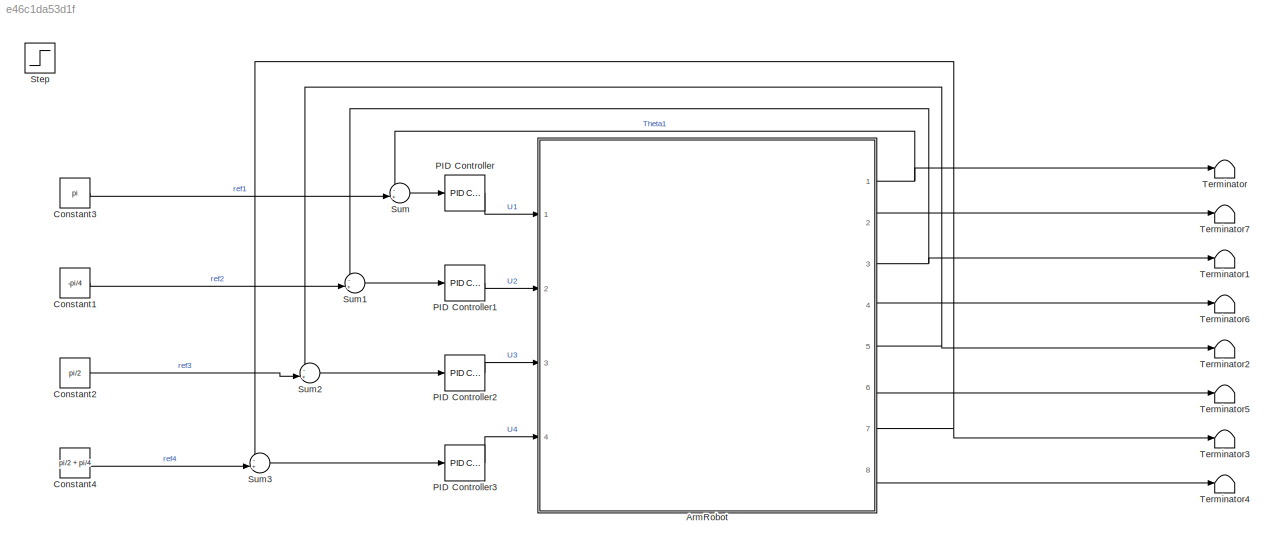
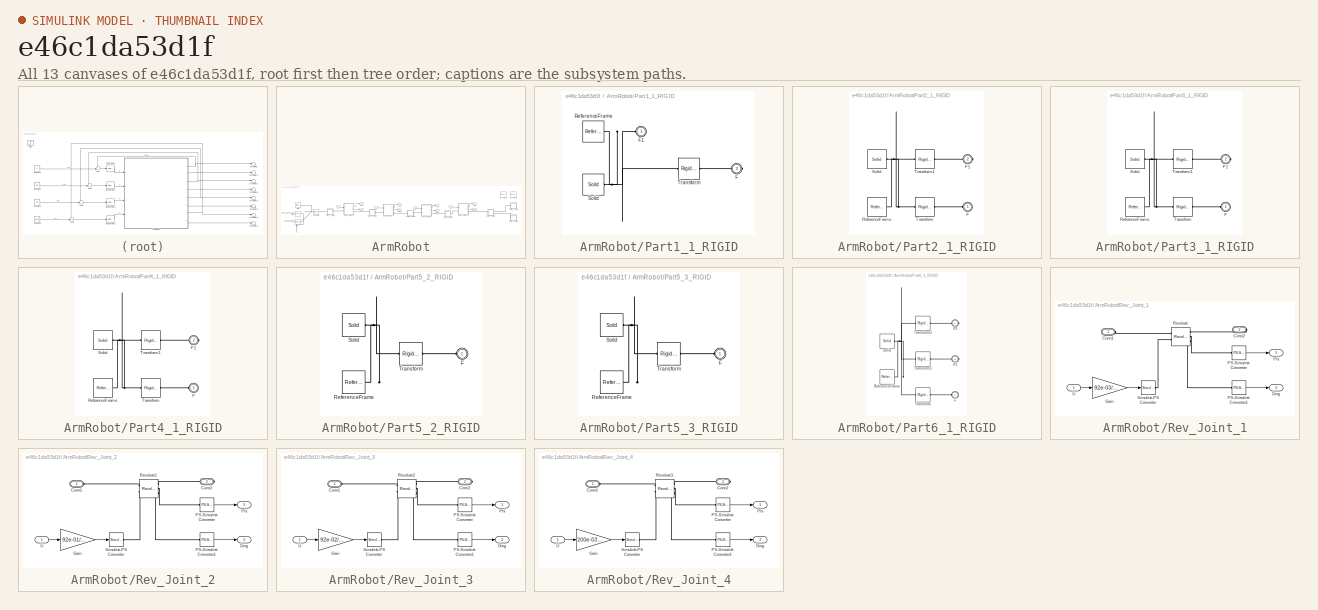
[diagram: thumbnail index - all 13 canvases of the model, root first then tree order]
MODEL slx_e46c1da53d1f
KIND model
CONFIG AbsTol = auto
CONFIG FixedStep = 0.001
CONFIG MaxStep = auto
CONFIG MinStep = auto
CONFIG RelTol = 1e-3
CONFIG SampleTimeConstraint = Unconstrained
CONFIG Solver = ode5
CONFIG SolverMode = Auto
CONFIG SolverName = ode5
CONFIG StartTime = 0.0
CONFIG StopTime = 10
WORKSPACE source: external: MATLAB File  (data not in archive)
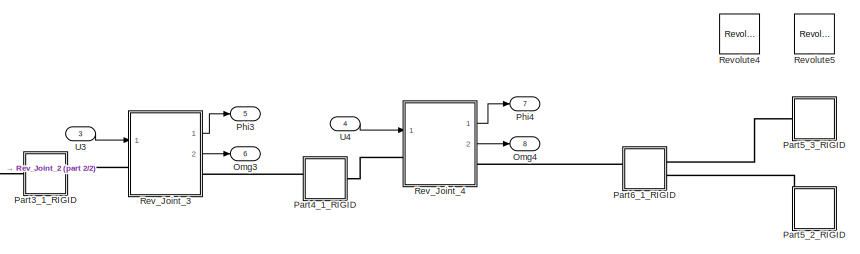
[diagram: ArmRobot - part 1/2, middle right region]
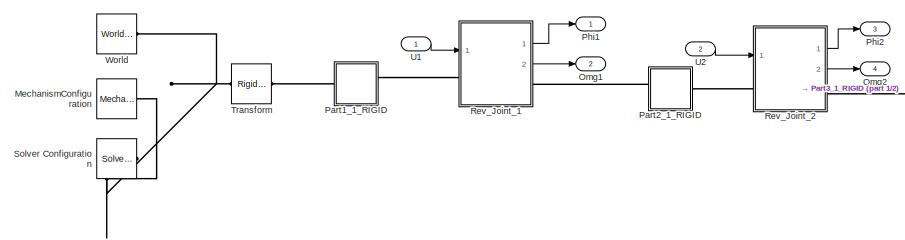
[diagram: ArmRobot - part 2/2, middle left region]
BLOCK [SubSystem] ArmRobot
  Ports = [4, 8]
  RequestExecContextInheritance = off
  Variant = off
BLOCK [Reference] ArmRobot/MechanismConfiguration  REF=sm_lib/Utilities/Mechanism
Configuration
  Ports = [0, 0, 0, 0, 0, 0, 1]
  SourceBlock = sm_lib/Utilities/Mechanism\nConfiguration
  SourceType = Mechanism\nConfiguration
BLOCK [Outport] ArmRobot/Omg1
  IconDisplay = Port number
  Port = 2
BLOCK [Outport] ArmRobot/Omg2
  IconDisplay = Port number
  Port = 4
BLOCK [Outport] ArmRobot/Omg3
  IconDisplay = Port number
  Port = 6
BLOCK [Outport] ArmRobot/Omg4
  IconDisplay = Port number
  Port = 8
BLOCK [SubSystem] ArmRobot/Part1_1_RIGID
  Ports = [0, 0, 0, 0, 0, 1, 1]
  RequestExecContextInheritance = off
  Variant = off
BLOCK [PMIOPort] ArmRobot/Part1_1_RIGID/F
  Port = 2
  Side = Right
BLOCK [PMIOPort] ArmRobot/Part1_1_RIGID/F1
  Port = 1
  Side = Left
BLOCK [Reference] ArmRobot/Part1_1_RIGID/ReferenceFrame  REF=sm_lib/Frames and
Transforms/Reference
Frame
  Ports = [0, 0, 0, 0, 0, 0, 1]
  SourceBlock = sm_lib/Frames and\nTransforms/Reference\nFrame
  SourceType = Reference\nFrame
BLOCK [Reference] ArmRobot/Part1_1_RIGID/Solid  REF=sm_lib/Body Elements/Solid
  Ports = [0, 0, 0, 0, 0, 0, 1]
  SourceBlock = sm_lib/Body Elements/Solid
  SourceType = Solid
BLOCK [Reference] ArmRobot/Part1_1_RIGID/Transform  REF=sm_lib/Frames and
Transforms/Rigid
Transform
  Ports = [0, 0, 0, 0, 0, 1, 1]
  SourceBlock = sm_lib/Frames and\nTransforms/Rigid\nTransform
  SourceType = Rigid\nTransform
BLOCK [SubSystem] ArmRobot/Part2_1_RIGID
  Ports = [0, 0, 0, 0, 0, 1, 1]
  RequestExecContextInheritance = off
  Variant = off
BLOCK [PMIOPort] ArmRobot/Part2_1_RIGID/F
  Port = 1
  Side = Left
BLOCK [PMIOPort] ArmRobot/Part2_1_RIGID/F1
  Port = 2
  Side = Right
BLOCK [Reference] ArmRobot/Part2_1_RIGID/ReferenceFrame  REF=sm_lib/Frames and
Transforms/Reference
Frame
  Ports = [0, 0, 0, 0, 0, 0, 1]
  SourceBlock = sm_lib/Frames and\nTransforms/Reference\nFrame
  SourceType = Reference\nFrame
BLOCK [Reference] ArmRobot/Part2_1_RIGID/Solid  REF=sm_lib/Body Elements/Solid
  Ports = [0, 0, 0, 0, 0, 0, 1]
  SourceBlock = sm_lib/Body Elements/Solid
  SourceType = Solid
BLOCK [Reference] ArmRobot/Part2_1_RIGID/Transform  REF=sm_lib/Frames and
Transforms/Rigid
Transform
  Ports = [0, 0, 0, 0, 0, 1, 1]
  SourceBlock = sm_lib/Frames and\nTransforms/Rigid\nTransform
  SourceType = Rigid\nTransform
BLOCK [Reference] ArmRobot/Part2_1_RIGID/Transform1  REF=sm_lib/Frames and
Transforms/Rigid
Transform
  Ports = [0, 0, 0, 0, 0, 1, 1]
  SourceBlock = sm_lib/Frames and\nTransforms/Rigid\nTransform
  SourceType = Rigid\nTransform
BLOCK [SubSystem] ArmRobot/Part3_1_RIGID
  Ports = [0, 0, 0, 0, 0, 1, 1]
  RequestExecContextInheritance = off
  Variant = off
BLOCK [PMIOPort] ArmRobot/Part3_1_RIGID/F
  Port = 1
  Side = Left
BLOCK [PMIOPort] ArmRobot/Part3_1_RIGID/F1
  Port = 2
  Side = Right
BLOCK [Reference] ArmRobot/Part3_1_RIGID/ReferenceFrame  REF=sm_lib/Frames and
Transforms/Reference
Frame
  Ports = [0, 0, 0, 0, 0, 0, 1]
  SourceBlock = sm_lib/Frames and\nTransforms/Reference\nFrame
  SourceType = Reference\nFrame
BLOCK [Reference] ArmRobot/Part3_1_RIGID/Solid  REF=sm_lib/Body Elements/Solid
  Ports = [0, 0, 0, 0, 0, 0, 1]
  SourceBlock = sm_lib/Body Elements/Solid
  SourceType = Solid
BLOCK [Reference] ArmRobot/Part3_1_RIGID/Transform  REF=sm_lib/Frames and
Transforms/Rigid
Transform
  Ports = [0, 0, 0, 0, 0, 1, 1]
  SourceBlock = sm_lib/Frames and\nTransforms/Rigid\nTransform
  SourceType = Rigid\nTransform
BLOCK [Reference] ArmRobot/Part3_1_RIGID/Transform1  REF=sm_lib/Frames and
Transforms/Rigid
Transform
  Ports = [0, 0, 0, 0, 0, 1, 1]
  SourceBlock = sm_lib/Frames and\nTransforms/Rigid\nTransform
  SourceType = Rigid\nTransform
BLOCK [SubSystem] ArmRobot/Part4_1_RIGID
  Ports = [0, 0, 0, 0, 0, 1, 1]
  RequestExecContextInheritance = off
  Variant = off
BLOCK [PMIOPort] ArmRobot/Part4_1_RIGID/F
  Port = 1
  Side = Left
BLOCK [PMIOPort] ArmRobot/Part4_1_RIGID/F1
  Port = 2
  Side = Right
BLOCK [Reference] ArmRobot/Part4_1_RIGID/ReferenceFrame  REF=sm_lib/Frames and
Transforms/Reference
Frame
  Ports = [0, 0, 0, 0, 0, 0, 1]
  SourceBlock = sm_lib/Frames and\nTransforms/Reference\nFrame
  SourceType = Reference\nFrame
BLOCK [Reference] ArmRobot/Part4_1_RIGID/Solid  REF=sm_lib/Body Elements/Solid
  Ports = [0, 0, 0, 0, 0, 0, 1]
  SourceBlock = sm_lib/Body Elements/Solid
  SourceType = Solid
BLOCK [Reference] ArmRobot/Part4_1_RIGID/Transform  REF=sm_lib/Frames and
Transforms/Rigid
Transform
  Ports = [0, 0, 0, 0, 0, 1, 1]
  SourceBlock = sm_lib/Frames and\nTransforms/Rigid\nTransform
  SourceType = Rigid\nTransform
BLOCK [Reference] ArmRobot/Part4_1_RIGID/Transform1  REF=sm_lib/Frames and
Transforms/Rigid
Transform
  Ports = [0, 0, 0, 0, 0, 1, 1]
  SourceBlock = sm_lib/Frames and\nTransforms/Rigid\nTransform
  SourceType = Rigid\nTransform
BLOCK [SubSystem] ArmRobot/Part5_2_RIGID
  Ports = [0, 0, 0, 0, 0, 1]
  RequestExecContextInheritance = off
  Variant = off
BLOCK [PMIOPort] ArmRobot/Part5_2_RIGID/F
  Port = 1
  Side = Left
BLOCK [Reference] ArmRobot/Part5_2_RIGID/ReferenceFrame  REF=sm_lib/Frames and
Transforms/Reference
Frame
  Ports = [0, 0, 0, 0, 0, 0, 1]
  SourceBlock = sm_lib/Frames and\nTransforms/Reference\nFrame
  SourceType = Reference\nFrame
BLOCK [Reference] ArmRobot/Part5_2_RIGID/Solid  REF=sm_lib/Body Elements/Solid
  Ports = [0, 0, 0, 0, 0, 0, 1]
  SourceBlock = sm_lib/Body Elements/Solid
  SourceType = Solid
BLOCK [Reference] ArmRobot/Part5_2_RIGID/Transform  REF=sm_lib/Frames and
Transforms/Rigid
Transform
  Ports = [0, 0, 0, 0, 0, 1, 1]
  SourceBlock = sm_lib/Frames and\nTransforms/Rigid\nTransform
  SourceType = Rigid\nTransform
BLOCK [SubSystem] ArmRobot/Part5_3_RIGID
  Ports = [0, 0, 0, 0, 0, 1]
  RequestExecContextInheritance = off
  Variant = off
BLOCK [PMIOPort] ArmRobot/Part5_3_RIGID/F
  Port = 1
  Side = Left
BLOCK [Reference] ArmRobot/Part5_3_RIGID/ReferenceFrame  REF=sm_lib/Frames and
Transforms/Reference
Frame
  Ports = [0, 0, 0, 0, 0, 0, 1]
  SourceBlock = sm_lib/Frames and\nTransforms/Reference\nFrame
  SourceType = Reference\nFrame
BLOCK [Reference] ArmRobot/Part5_3_RIGID/Solid  REF=sm_lib/Body Elements/Solid
  Ports = [0, 0, 0, 0, 0, 0, 1]
  SourceBlock = sm_lib/Body Elements/Solid
  SourceType = Solid
BLOCK [Reference] ArmRobot/Part5_3_RIGID/Transform  REF=sm_lib/Frames and
Transforms/Rigid
Transform
  Ports = [0, 0, 0, 0, 0, 1, 1]
  SourceBlock = sm_lib/Frames and\nTransforms/Rigid\nTransform
  SourceType = Rigid\nTransform
BLOCK [SubSystem] ArmRobot/Part6_1_RIGID
  Ports = [0, 0, 0, 0, 0, 1, 2]
  RequestExecContextInheritance = off
  Variant = off
BLOCK [PMIOPort] ArmRobot/Part6_1_RIGID/F
  Port = 1
  Side = Left
BLOCK [PMIOPort] ArmRobot/Part6_1_RIGID/F1
  Port = 3
  Side = Right
BLOCK [PMIOPort] ArmRobot/Part6_1_RIGID/F2
  Port = 2
  Side = Right
BLOCK [Reference] ArmRobot/Part6_1_RIGID/ReferenceFrame  REF=sm_lib/Frames and
Transforms/Reference
Frame
  Ports = [0, 0, 0, 0, 0, 0, 1]
  SourceBlock = sm_lib/Frames and\nTransforms/Reference\nFrame
  SourceType = Reference\nFrame
BLOCK [Reference] ArmRobot/Part6_1_RIGID/Solid  REF=sm_lib/Body Elements/Solid
  Ports = [0, 0, 0, 0, 0, 0, 1]
  SourceBlock = sm_lib/Body Elements/Solid
  SourceType = Solid
BLOCK [Reference] ArmRobot/Part6_1_RIGID/Transform  REF=sm_lib/Frames and
Transforms/Rigid
Transform
  Ports = [0, 0, 0, 0, 0, 1, 1]
  SourceBlock = sm_lib/Frames and\nTransforms/Rigid\nTransform
  SourceType = Rigid\nTransform
BLOCK [Reference] ArmRobot/Part6_1_RIGID/Transform1  REF=sm_lib/Frames and
Transforms/Rigid
Transform
  Ports = [0, 0, 0, 0, 0, 1, 1]
  SourceBlock = sm_lib/Frames and\nTransforms/Rigid\nTransform
  SourceType = Rigid\nTransform
BLOCK [Reference] ArmRobot/Part6_1_RIGID/Transform2  REF=sm_lib/Frames and
Transforms/Rigid
Transform
  Ports = [0, 0, 0, 0, 0, 1, 1]
  SourceBlock = sm_lib/Frames and\nTransforms/Rigid\nTransform
  SourceType = Rigid\nTransform
BLOCK [Outport] ArmRobot/Phi1
  IconDisplay = Port number
BLOCK [Outport] ArmRobot/Phi2
  IconDisplay = Port number
  Port = 3
BLOCK [Outport] ArmRobot/Phi3
  IconDisplay = Port number
  Port = 5
BLOCK [Outport] ArmRobot/Phi4
  IconDisplay = Port number
  Port = 7
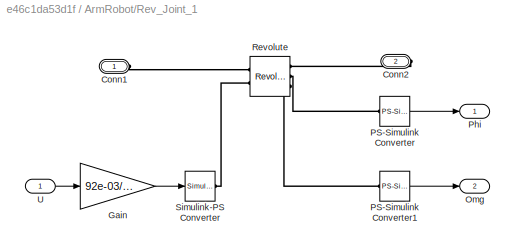
BLOCK [SubSystem] ArmRobot/Rev_Joint_1
  Ports = [1, 2, 0, 0, 0, 1, 1]
  RequestExecContextInheritance = off
  Variant = off
BLOCK [PMIOPort] ArmRobot/Rev_Joint_1/Conn1
  Port = 1
  Side = Left
BLOCK [PMIOPort] ArmRobot/Rev_Joint_1/Conn2
  Port = 2
  Side = Right
BLOCK [Gain] ArmRobot/Rev_Joint_1/Gain
  Gain = 92e-03/12
  OutDataTypeStr = Inherit: Inherit via internal rule
  ParamDataTypeStr = Inherit: Inherit via internal rule
  SaturateOnIntegerOverflow = off
BLOCK [Outport] ArmRobot/Rev_Joint_1/Omg
  IconDisplay = Port number
  Port = 2
BLOCK [Reference] ArmRobot/Rev_Joint_1/PS-Simulink Converter  REF=nesl_utility/PS-Simulink
Converter
  Ports = [0, 1, 0, 0, 0, 1]
  SourceBlock = nesl_utility/PS-Simulink\nConverter
  SourceType = PS-Simulink\nConverter
BLOCK [Reference] ArmRobot/Rev_Joint_1/PS-Simulink Converter1  REF=nesl_utility/PS-Simulink
Converter
  Ports = [0, 1, 0, 0, 0, 1]
  SourceBlock = nesl_utility/PS-Simulink\nConverter
  SourceType = PS-Simulink\nConverter
BLOCK [Outport] ArmRobot/Rev_Joint_1/Phi
  IconDisplay = Port number
BLOCK [Reference] ArmRobot/Rev_Joint_1/Revolute  REF=sm_lib/Joints/Revolute Joint
  Ports = [0, 0, 0, 0, 0, 2, 3]
  SourceBlock = sm_lib/Joints/Revolute Joint
  SourceType = Revolute Joint
BLOCK [Reference] ArmRobot/Rev_Joint_1/Simulink-PS Converter  REF=nesl_utility/Simulink-PS
Converter
  Ports = [1, 0, 0, 0, 0, 0, 1]
  SourceBlock = nesl_utility/Simulink-PS\nConverter
  SourceType = Simulink-PS\nConverter
BLOCK [Inport] ArmRobot/Rev_Joint_1/U
  IconDisplay = Port number
BLOCK [SubSystem] ArmRobot/Rev_Joint_2
  Ports = [1, 2, 0, 0, 0, 1, 1]
  RequestExecContextInheritance = off
  Variant = off
BLOCK [PMIOPort] ArmRobot/Rev_Joint_2/Conn1
  Port = 1
  Side = Left
BLOCK [PMIOPort] ArmRobot/Rev_Joint_2/Conn2
  Port = 2
  Side = Right
BLOCK [Gain] ArmRobot/Rev_Joint_2/Gain
  Gain = 92e-01/12
  OutDataTypeStr = Inherit: Inherit via internal rule
  ParamDataTypeStr = Inherit: Inherit via internal rule
  SaturateOnIntegerOverflow = off
BLOCK [Outport] ArmRobot/Rev_Joint_2/Omg
  IconDisplay = Port number
  Port = 2
BLOCK [Reference] ArmRobot/Rev_Joint_2/PS-Simulink Converter  REF=nesl_utility/PS-Simulink
Converter
  Ports = [0, 1, 0, 0, 0, 1]
  SourceBlock = nesl_utility/PS-Simulink\nConverter
  SourceType = PS-Simulink\nConverter
BLOCK [Reference] ArmRobot/Rev_Joint_2/PS-Simulink Converter1  REF=nesl_utility/PS-Simulink
Converter
  Ports = [0, 1, 0, 0, 0, 1]
  SourceBlock = nesl_utility/PS-Simulink\nConverter
  SourceType = PS-Simulink\nConverter
BLOCK [Outport] ArmRobot/Rev_Joint_2/Phi
  IconDisplay = Port number
BLOCK [Reference] ArmRobot/Rev_Joint_2/Revolute1  REF=sm_lib/Joints/Revolute Joint
  Ports = [0, 0, 0, 0, 0, 2, 3]
  SourceBlock = sm_lib/Joints/Revolute Joint
  SourceType = Revolute Joint
BLOCK [Reference] ArmRobot/Rev_Joint_2/Simulink-PS Converter  REF=nesl_utility/Simulink-PS
Converter
  Ports = [1, 0, 0, 0, 0, 0, 1]
  SourceBlock = nesl_utility/Simulink-PS\nConverter
  SourceType = Simulink-PS\nConverter
BLOCK [Inport] ArmRobot/Rev_Joint_2/U
  IconDisplay = Port number
BLOCK [SubSystem] ArmRobot/Rev_Joint_3
  Ports = [1, 2, 0, 0, 0, 1, 1]
  RequestExecContextInheritance = off
  Variant = off
BLOCK [PMIOPort] ArmRobot/Rev_Joint_3/Conn1
  Port = 1
  Side = Left
BLOCK [PMIOPort] ArmRobot/Rev_Joint_3/Conn2
  Port = 2
  Side = Right
BLOCK [Gain] ArmRobot/Rev_Joint_3/Gain
  Gain = 92e-02/12
  OutDataTypeStr = Inherit: Inherit via internal rule
  ParamDataTypeStr = Inherit: Inherit via internal rule
  SaturateOnIntegerOverflow = off
BLOCK [Outport] ArmRobot/Rev_Joint_3/Omg
  IconDisplay = Port number
  Port = 2
BLOCK [Reference] ArmRobot/Rev_Joint_3/PS-Simulink Converter  REF=nesl_utility/PS-Simulink
Converter
  Ports = [0, 1, 0, 0, 0, 1]
  SourceBlock = nesl_utility/PS-Simulink\nConverter
  SourceType = PS-Simulink\nConverter
BLOCK [Reference] ArmRobot/Rev_Joint_3/PS-Simulink Converter1  REF=nesl_utility/PS-Simulink
Converter
  Ports = [0, 1, 0, 0, 0, 1]
  SourceBlock = nesl_utility/PS-Simulink\nConverter
  SourceType = PS-Simulink\nConverter
BLOCK [Outport] ArmRobot/Rev_Joint_3/Phi
  IconDisplay = Port number
BLOCK [Reference] ArmRobot/Rev_Joint_3/Revolute2  REF=sm_lib/Joints/Revolute Joint
  Ports = [0, 0, 0, 0, 0, 2, 3]
  SourceBlock = sm_lib/Joints/Revolute Joint
  SourceType = Revolute Joint
BLOCK [Reference] ArmRobot/Rev_Joint_3/Simulink-PS Converter  REF=nesl_utility/Simulink-PS
Converter
  Ports = [1, 0, 0, 0, 0, 0, 1]
  SourceBlock = nesl_utility/Simulink-PS\nConverter
  SourceType = Simulink-PS\nConverter
BLOCK [Inport] ArmRobot/Rev_Joint_3/U
  IconDisplay = Port number
BLOCK [SubSystem] ArmRobot/Rev_Joint_4
  Ports = [1, 2, 0, 0, 0, 1, 1]
  RequestExecContextInheritance = off
  Variant = off
BLOCK [PMIOPort] ArmRobot/Rev_Joint_4/Conn1
  Port = 1
  Side = Left
BLOCK [PMIOPort] ArmRobot/Rev_Joint_4/Conn2
  Port = 2
  Side = Right
BLOCK [Gain] ArmRobot/Rev_Joint_4/Gain
  Gain = 200e-03/12
  OutDataTypeStr = Inherit: Inherit via internal rule
  ParamDataTypeStr = Inherit: Inherit via internal rule
  SaturateOnIntegerOverflow = off
BLOCK [Outport] ArmRobot/Rev_Joint_4/Omg
  IconDisplay = Port number
  Port = 2
BLOCK [Reference] ArmRobot/Rev_Joint_4/PS-Simulink Converter  REF=nesl_utility/PS-Simulink
Converter
  Ports = [0, 1, 0, 0, 0, 1]
  SourceBlock = nesl_utility/PS-Simulink\nConverter
  SourceType = PS-Simulink\nConverter
BLOCK [Reference] ArmRobot/Rev_Joint_4/PS-Simulink Converter1  REF=nesl_utility/PS-Simulink
Converter
  Ports = [0, 1, 0, 0, 0, 1]
  SourceBlock = nesl_utility/PS-Simulink\nConverter
  SourceType = PS-Simulink\nConverter
BLOCK [Outport] ArmRobot/Rev_Joint_4/Phi
  IconDisplay = Port number
BLOCK [Reference] ArmRobot/Rev_Joint_4/Revolute3  REF=sm_lib/Joints/Revolute Joint
  Ports = [0, 0, 0, 0, 0, 2, 3]
  SourceBlock = sm_lib/Joints/Revolute Joint
  SourceType = Revolute Joint
BLOCK [Reference] ArmRobot/Rev_Joint_4/Simulink-PS Converter  REF=nesl_utility/Simulink-PS
Converter
  Ports = [1, 0, 0, 0, 0, 0, 1]
  SourceBlock = nesl_utility/Simulink-PS\nConverter
  SourceType = Simulink-PS\nConverter
BLOCK [Inport] ArmRobot/Rev_Joint_4/U
  IconDisplay = Port number
BLOCK [Reference] ArmRobot/Revolute4  REF=sm_lib/Joints/Revolute Joint
  Commented = on
  Ports = [0, 0, 0, 0, 0, 1, 1]
  SourceBlock = sm_lib/Joints/Revolute Joint
  SourceType = Revolute Joint
BLOCK [Reference] ArmRobot/Revolute5  REF=sm_lib/Joints/Revolute Joint
  Commented = on
  Ports = [0, 0, 0, 0, 0, 1, 1]
  SourceBlock = sm_lib/Joints/Revolute Joint
  SourceType = Revolute Joint
BLOCK [Reference] ArmRobot/Solver Configuration  REF=nesl_utility/Solver
Configuration
  Ports = [0, 0, 0, 0, 0, 0, 1]
  SourceBlock = nesl_utility/Solver\nConfiguration
  SourceType = Solver\nConfiguration
BLOCK [Reference] ArmRobot/Transform  REF=sm_lib/Frames and
Transforms/Rigid
Transform
  Ports = [0, 0, 0, 0, 0, 1, 1]
  SourceBlock = sm_lib/Frames and\nTransforms/Rigid\nTransform
  SourceType = Rigid\nTransform
BLOCK [Inport] ArmRobot/U1
  IconDisplay = Port number
BLOCK [Inport] ArmRobot/U2
  IconDisplay = Port number
  Port = 2
BLOCK [Inport] ArmRobot/U3
  IconDisplay = Port number
  Port = 3
BLOCK [Inport] ArmRobot/U4
  IconDisplay = Port number
  Port = 4
BLOCK [Reference] ArmRobot/World  REF=sm_lib/Frames and
Transforms/World Frame
  Ports = [0, 0, 0, 0, 0, 0, 1]
  SourceBlock = sm_lib/Frames and\nTransforms/World Frame
  SourceType = World Frame
BLOCK [Constant] Constant1
  Value = -pi/4
BLOCK [Constant] Constant2
  Value = pi/2
BLOCK [Constant] Constant3
  Value = pi
BLOCK [Constant] Constant4
  Value = pi/2 + pi/4
BLOCK [Reference] PID Controller  REF=simulink/Continuous/PID Controller
  Ports = [1, 1]
  SourceBlock = simulink/Continuous/PID Controller
  SourceType = PID 1dof
BLOCK [Reference] PID Controller1  REF=simulink/Continuous/PID Controller
  Ports = [1, 1]
  SourceBlock = simulink/Continuous/PID Controller
  SourceType = PID 1dof
BLOCK [Reference] PID Controller2  REF=simulink/Continuous/PID Controller
  Ports = [1, 1]
  SourceBlock = simulink/Continuous/PID Controller
  SourceType = PID 1dof
BLOCK [Reference] PID Controller3  REF=simulink/Continuous/PID Controller
  Ports = [1, 1]
  SourceBlock = simulink/Continuous/PID Controller
  SourceType = PID 1dof
BLOCK [Step] Step
  Commented = on
  SampleTime = 0
BLOCK [Sum] Sum
  IconShape = round
  InputSameDT = off
  Inputs = -+|
  OutDataTypeStr = Inherit: Inherit via internal rule
  Ports = [2, 1]
  SaturateOnIntegerOverflow = off
BLOCK [Sum] Sum1
  IconShape = round
  InputSameDT = off
  Inputs = -+|
  OutDataTypeStr = Inherit: Inherit via internal rule
  Ports = [2, 1]
  SaturateOnIntegerOverflow = off
BLOCK [Sum] Sum2
  IconShape = round
  InputSameDT = off
  Inputs = -+|
  OutDataTypeStr = Inherit: Inherit via internal rule
  Ports = [2, 1]
  SaturateOnIntegerOverflow = off
BLOCK [Sum] Sum3
  IconShape = round
  InputSameDT = off
  Inputs = -+|
  OutDataTypeStr = Inherit: Inherit via internal rule
  Ports = [2, 1]
  SaturateOnIntegerOverflow = off
BLOCK [Terminator] Terminator
BLOCK [Terminator] Terminator1
BLOCK [Terminator] Terminator2
BLOCK [Terminator] Terminator3
BLOCK [Terminator] Terminator4
BLOCK [Terminator] Terminator5
BLOCK [Terminator] Terminator6
BLOCK [Terminator] Terminator7
LINE ArmRobot/Rev_Joint_1/Gain:1 -> ArmRobot/Rev_Joint_1/Simulink-PS Converter:1
LINE ArmRobot/Rev_Joint_1/PS-Simulink Converter1:1 -> ArmRobot/Rev_Joint_1/Omg:1
LINE ArmRobot/Rev_Joint_1/PS-Simulink Converter:1 -> ArmRobot/Rev_Joint_1/Phi:1
LINE ArmRobot/Rev_Joint_1/U:1 -> ArmRobot/Rev_Joint_1/Gain:1
LINE ArmRobot/Rev_Joint_1:1 -> ArmRobot/Phi1:1
LINE ArmRobot/Rev_Joint_1:2 -> ArmRobot/Omg1:1
LINE ArmRobot/Rev_Joint_2/Gain:1 -> ArmRobot/Rev_Joint_2/Simulink-PS Converter:1
LINE ArmRobot/Rev_Joint_2/PS-Simulink Converter1:1 -> ArmRobot/Rev_Joint_2/Omg:1
LINE ArmRobot/Rev_Joint_2/PS-Simulink Converter:1 -> ArmRobot/Rev_Joint_2/Phi:1
LINE ArmRobot/Rev_Joint_2/U:1 -> ArmRobot/Rev_Joint_2/Gain:1
LINE ArmRobot/Rev_Joint_2:1 -> ArmRobot/Phi2:1
LINE ArmRobot/Rev_Joint_2:2 -> ArmRobot/Omg2:1
LINE ArmRobot/Rev_Joint_3/Gain:1 -> ArmRobot/Rev_Joint_3/Simulink-PS Converter:1
LINE ArmRobot/Rev_Joint_3/PS-Simulink Converter1:1 -> ArmRobot/Rev_Joint_3/Omg:1
LINE ArmRobot/Rev_Joint_3/PS-Simulink Converter:1 -> ArmRobot/Rev_Joint_3/Phi:1
LINE ArmRobot/Rev_Joint_3/U:1 -> ArmRobot/Rev_Joint_3/Gain:1
LINE ArmRobot/Rev_Joint_3:1 -> ArmRobot/Phi3:1
LINE ArmRobot/Rev_Joint_3:2 -> ArmRobot/Omg3:1
LINE ArmRobot/Rev_Joint_4/Gain:1 -> ArmRobot/Rev_Joint_4/Simulink-PS Converter:1
LINE ArmRobot/Rev_Joint_4/PS-Simulink Converter1:1 -> ArmRobot/Rev_Joint_4/Omg:1
LINE ArmRobot/Rev_Joint_4/PS-Simulink Converter:1 -> ArmRobot/Rev_Joint_4/Phi:1
LINE ArmRobot/Rev_Joint_4/U:1 -> ArmRobot/Rev_Joint_4/Gain:1
LINE ArmRobot/Rev_Joint_4:1 -> ArmRobot/Phi4:1
LINE ArmRobot/Rev_Joint_4:2 -> ArmRobot/Omg4:1
LINE ArmRobot/U1:1 -> ArmRobot/Rev_Joint_1:1
LINE ArmRobot/U2:1 -> ArmRobot/Rev_Joint_2:1
LINE ArmRobot/U3:1 -> ArmRobot/Rev_Joint_3:1
LINE ArmRobot/U4:1 -> ArmRobot/Rev_Joint_4:1
NET ArmRobot:1 -> Sum:1, Terminator:1
LINE ArmRobot:2 -> Terminator7:1
NET ArmRobot:3 -> Sum1:1, Terminator1:1
LINE ArmRobot:4 -> Terminator6:1
NET ArmRobot:5 -> Sum2:1, Terminator2:1
LINE ArmRobot:6 -> Terminator5:1
NET ArmRobot:7 -> Sum3:1, Terminator3:1
LINE ArmRobot:8 -> Terminator4:1
LINE Constant1:1 -> Sum1:2
LINE Constant2:1 -> Sum2:2
LINE Constant3:1 -> Sum:2
LINE Constant4:1 -> Sum3:2
LINE PID Controller1:1 -> ArmRobot:2
LINE PID Controller2:1 -> ArmRobot:3
LINE PID Controller3:1 -> ArmRobot:4
LINE PID Controller:1 -> ArmRobot:1
LINE Sum1:1 -> PID Controller1:1
LINE Sum2:1 -> PID Controller2:1
LINE Sum3:1 -> PID Controller3:1
LINE Sum:1 -> PID Controller:1
PNET net1: ArmRobot/MechanismConfiguration:RConn1 -- ArmRobot/Solver Configuration:RConn1 -- ArmRobot/Transform:LConn1 -- ArmRobot/World:RConn1
PNET net2: ArmRobot/Part1_1_RIGID/F1:RConn1 -- ArmRobot/Part1_1_RIGID/ReferenceFrame:RConn1 -- ArmRobot/Part1_1_RIGID/Solid:RConn1 -- ArmRobot/Part1_1_RIGID/Transform:LConn1
PLINE ArmRobot/Part1_1_RIGID/F:RConn1 -- ArmRobot/Part1_1_RIGID/Transform:RConn1
PLINE ArmRobot/Part1_1_RIGID:LConn1 -- ArmRobot/Transform:RConn1
PLINE ArmRobot/Part1_1_RIGID:RConn1 -- ArmRobot/Rev_Joint_1:LConn1
PLINE ArmRobot/Part2_1_RIGID/F1:RConn1 -- ArmRobot/Part2_1_RIGID/Transform1:RConn1
PLINE ArmRobot/Part2_1_RIGID/F:RConn1 -- ArmRobot/Part2_1_RIGID/Transform:RConn1
PNET net3: ArmRobot/Part2_1_RIGID/ReferenceFrame:RConn1 -- ArmRobot/Part2_1_RIGID/Solid:RConn1 -- ArmRobot/Part2_1_RIGID/Transform1:LConn1 -- ArmRobot/Part2_1_RIGID/Transform:LConn1
PLINE ArmRobot/Part2_1_RIGID:LConn1 -- ArmRobot/Rev_Joint_1:RConn1
PLINE ArmRobot/Part2_1_RIGID:RConn1 -- ArmRobot/Rev_Joint_2:LConn1
PLINE ArmRobot/Part3_1_RIGID/F1:RConn1 -- ArmRobot/Part3_1_RIGID/Transform1:RConn1
PLINE ArmRobot/Part3_1_RIGID/F:RConn1 -- ArmRobot/Part3_1_RIGID/Transform:RConn1
PNET net4: ArmRobot/Part3_1_RIGID/ReferenceFrame:RConn1 -- ArmRobot/Part3_1_RIGID/Solid:RConn1 -- ArmRobot/Part3_1_RIGID/Transform1:LConn1 -- ArmRobot/Part3_1_RIGID/Transform:LConn1
PLINE ArmRobot/Part3_1_RIGID:LConn1 -- ArmRobot/Rev_Joint_2:RConn1
PLINE ArmRobot/Part3_1_RIGID:RConn1 -- ArmRobot/Rev_Joint_3:LConn1
PLINE ArmRobot/Part4_1_RIGID/F1:RConn1 -- ArmRobot/Part4_1_RIGID/Transform1:RConn1
PLINE ArmRobot/Part4_1_RIGID/F:RConn1 -- ArmRobot/Part4_1_RIGID/Transform:RConn1
PNET net5: ArmRobot/Part4_1_RIGID/ReferenceFrame:RConn1 -- ArmRobot/Part4_1_RIGID/Solid:RConn1 -- ArmRobot/Part4_1_RIGID/Transform1:LConn1 -- ArmRobot/Part4_1_RIGID/Transform:LConn1
PLINE ArmRobot/Part4_1_RIGID:LConn1 -- ArmRobot/Rev_Joint_3:RConn1
PLINE ArmRobot/Part4_1_RIGID:RConn1 -- ArmRobot/Rev_Joint_4:LConn1
PLINE ArmRobot/Part5_2_RIGID/F:RConn1 -- ArmRobot/Part5_2_RIGID/Transform:RConn1
PNET net6: ArmRobot/Part5_2_RIGID/ReferenceFrame:RConn1 -- ArmRobot/Part5_2_RIGID/Solid:RConn1 -- ArmRobot/Part5_2_RIGID/Transform:LConn1
PLINE ArmRobot/Part5_2_RIGID:LConn1 -- ArmRobot/Part6_1_RIGID:RConn2
PLINE ArmRobot/Part5_3_RIGID/F:RConn1 -- ArmRobot/Part5_3_RIGID/Transform:RConn1
PNET net7: ArmRobot/Part5_3_RIGID/ReferenceFrame:RConn1 -- ArmRobot/Part5_3_RIGID/Solid:RConn1 -- ArmRobot/Part5_3_RIGID/Transform:LConn1
PLINE ArmRobot/Part5_3_RIGID:LConn1 -- ArmRobot/Part6_1_RIGID:RConn1
PLINE ArmRobot/Part6_1_RIGID/F1:RConn1 -- ArmRobot/Part6_1_RIGID/Transform1:RConn1
PLINE ArmRobot/Part6_1_RIGID/F2:RConn1 -- ArmRobot/Part6_1_RIGID/Transform2:RConn1
PLINE ArmRobot/Part6_1_RIGID/F:RConn1 -- ArmRobot/Part6_1_RIGID/Transform:RConn1
PNET net8: ArmRobot/Part6_1_RIGID/ReferenceFrame:RConn1 -- ArmRobot/Part6_1_RIGID/Solid:RConn1 -- ArmRobot/Part6_1_RIGID/Transform1:LConn1 -- ArmRobot/Part6_1_RIGID/Transform2:LConn1 -- ArmRobot/Part6_1_RIGID/Transform:LConn1
PLINE ArmRobot/Part6_1_RIGID:LConn1 -- ArmRobot/Rev_Joint_4:RConn1
PLINE ArmRobot/Rev_Joint_1/Conn1:RConn1 -- ArmRobot/Rev_Joint_1/Revolute:LConn1
PLINE ArmRobot/Rev_Joint_1/Conn2:RConn1 -- ArmRobot/Rev_Joint_1/Revolute:RConn1
PLINE ArmRobot/Rev_Joint_1/PS-Simulink Converter1:LConn1 -- ArmRobot/Rev_Joint_1/Revolute:RConn3
PLINE ArmRobot/Rev_Joint_1/PS-Simulink Converter:LConn1 -- ArmRobot/Rev_Joint_1/Revolute:RConn2
PLINE ArmRobot/Rev_Joint_1/Revolute:LConn2 -- ArmRobot/Rev_Joint_1/Simulink-PS Converter:RConn1
PLINE ArmRobot/Rev_Joint_2/Conn1:RConn1 -- ArmRobot/Rev_Joint_2/Revolute1:LConn1
PLINE ArmRobot/Rev_Joint_2/Conn2:RConn1 -- ArmRobot/Rev_Joint_2/Revolute1:RConn1
PLINE ArmRobot/Rev_Joint_2/PS-Simulink Converter1:LConn1 -- ArmRobot/Rev_Joint_2/Revolute1:RConn3
PLINE ArmRobot/Rev_Joint_2/PS-Simulink Converter:LConn1 -- ArmRobot/Rev_Joint_2/Revolute1:RConn2
PLINE ArmRobot/Rev_Joint_2/Revolute1:LConn2 -- ArmRobot/Rev_Joint_2/Simulink-PS Converter:RConn1
PLINE ArmRobot/Rev_Joint_3/Conn1:RConn1 -- ArmRobot/Rev_Joint_3/Revolute2:LConn1
PLINE ArmRobot/Rev_Joint_3/Conn2:RConn1 -- ArmRobot/Rev_Joint_3/Revolute2:RConn1
PLINE ArmRobot/Rev_Joint_3/PS-Simulink Converter1:LConn1 -- ArmRobot/Rev_Joint_3/Revolute2:RConn3
PLINE ArmRobot/Rev_Joint_3/PS-Simulink Converter:LConn1 -- ArmRobot/Rev_Joint_3/Revolute2:RConn2
PLINE ArmRobot/Rev_Joint_3/Revolute2:LConn2 -- ArmRobot/Rev_Joint_3/Simulink-PS Converter:RConn1
PLINE ArmRobot/Rev_Joint_4/Conn1:RConn1 -- ArmRobot/Rev_Joint_4/Revolute3:LConn1
PLINE ArmRobot/Rev_Joint_4/Conn2:RConn1 -- ArmRobot/Rev_Joint_4/Revolute3:RConn1
PLINE ArmRobot/Rev_Joint_4/PS-Simulink Converter1:LConn1 -- ArmRobot/Rev_Joint_4/Revolute3:RConn3
PLINE ArmRobot/Rev_Joint_4/PS-Simulink Converter:LConn1 -- ArmRobot/Rev_Joint_4/Revolute3:RConn2
PLINE ArmRobot/Rev_Joint_4/Revolute3:LConn2 -- ArmRobot/Rev_Joint_4/Simulink-PS Converter:RConn1
note: NET lines group one-source signal fan-out (src -> all destinations, sorted); 1:1 wires keep LINE; PNET lines group multi-terminal physical nets as a canonical sorted terminal list (undirected conserving connections); 2-terminal nets keep the pairwise PLINE form
